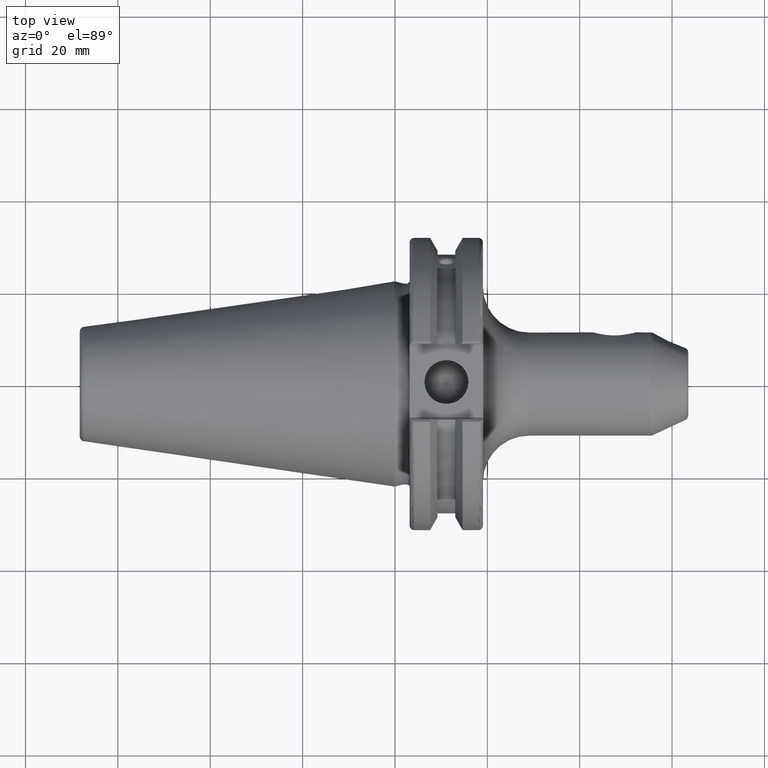
[diagram: clean part render]
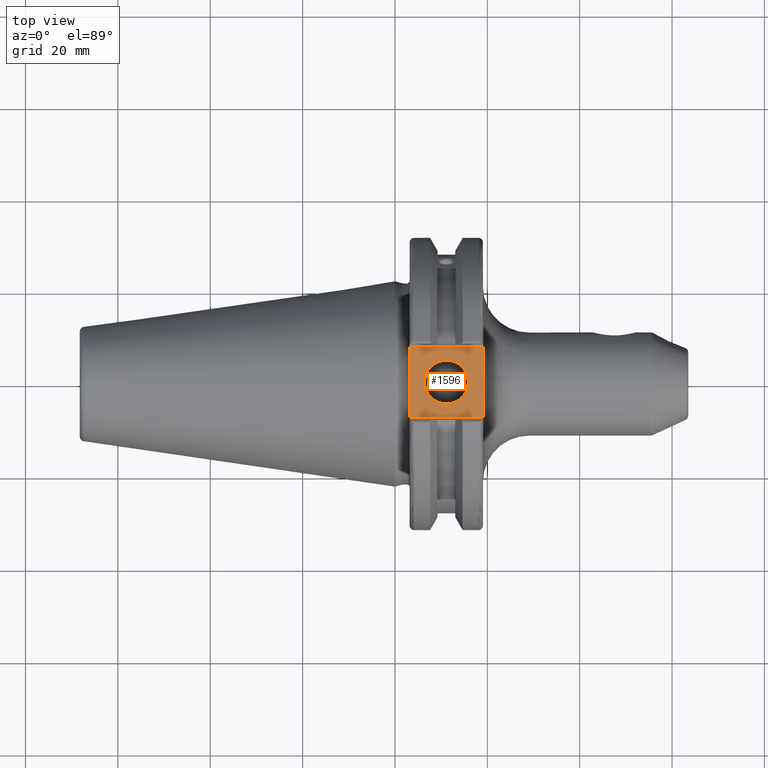
[diagram: same view with one face highlighted and labeled with its STEP entity id]
A machine part, top view. The second image highlights one B-rep face of the part: STEP entity #1596.
In plain terms, the highlighted planar face has unit normal (0, 0, 1).
Its self-contained STEP definition (entity closure, byte-faithful):
#102=LINE('',#2408,#196);
#146=LINE('',#2837,#240);
#174=LINE('',#3066,#268);
#176=LINE('',#3069,#270);
#196=VECTOR('',#1873,10.);
#240=VECTOR('',#2087,10.);
#268=VECTOR('',#2181,10.);
#270=VECTOR('',#2185,10.);
#327=FACE_BOUND('',#546,.T.);
#361=PLANE('',#1798);
#444=FACE_OUTER_BOUND('',#545,.T.);
#545=EDGE_LOOP('',(#1475,#1476,#1477,#1478));
#546=EDGE_LOOP('',(#1479));
#622=CIRCLE('',#1786,4.7625);
#653=VERTEX_POINT('',#2405);
#654=VERTEX_POINT('',#2407);
#739=VERTEX_POINT('',#2834);
#740=VERTEX_POINT('',#2836);
#786=VERTEX_POINT('',#3105);
#818=EDGE_CURVE('',#653,#654,#102,.T.);
#935=EDGE_CURVE('',#739,#740,#146,.T.);
#998=EDGE_CURVE('',#654,#739,#174,.T.);
#1000=EDGE_CURVE('',#740,#653,#176,.T.);
#1015=EDGE_CURVE('',#786,#786,#622,.T.);
#1475=ORIENTED_EDGE('',*,*,#998,.F.);
#1476=ORIENTED_EDGE('',*,*,#818,.F.);
#1477=ORIENTED_EDGE('',*,*,#1000,.F.);
#1478=ORIENTED_EDGE('',*,*,#935,.F.);
#1479=ORIENTED_EDGE('',*,*,#1015,.T.);
#1596=ADVANCED_FACE('',(#444,#327),#361,.T.);
#1786=AXIS2_PLACEMENT_3D('',#3106,#2220,#2221);
#1798=AXIS2_PLACEMENT_3D('',#3119,#2245,#2246);
#1873=DIRECTION('',(0.,-1.,0.));
#2087=DIRECTION('',(0.,1.,0.));
#2181=DIRECTION('',(-1.,1.31581988103722E-16,0.));
#2185=DIRECTION('',(1.,0.,0.));
#2220=DIRECTION('center_axis',(0.,0.,-1.));
#2221=DIRECTION('ref_axis',(1.,0.,0.));
#2245=DIRECTION('center_axis',(0.,0.,1.));
#2246=DIRECTION('ref_axis',(1.,0.,0.));
#2405=CARTESIAN_POINT('',(19.05,7.69,25.));
#2407=CARTESIAN_POINT('',(19.05,-7.69,25.));
#2408=CARTESIAN_POINT('',(19.05,0.,25.));
#2834=CARTESIAN_POINT('',(3.175,-7.68999999999999,25.));
#2836=CARTESIAN_POINT('',(3.175,7.69,25.));
#2837=CARTESIAN_POINT('',(3.175,15.875,25.));
#3066=CARTESIAN_POINT('',(9.44125,-7.69,25.));
#3069=CARTESIAN_POINT('',(17.87875,7.69,25.));
#3105=CARTESIAN_POINT('',(6.3716,-5.83238038093927E-16,25.));
#3106=CARTESIAN_POINT('Origin',(11.1341,0.,25.));
#3119=CARTESIAN_POINT('Origin',(15.7075,0.,25.));